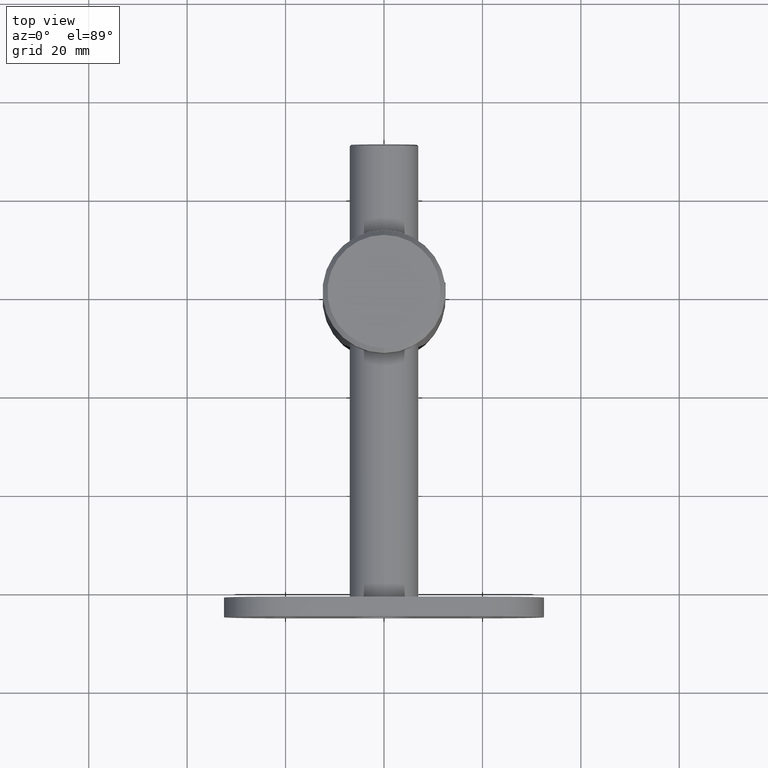
[diagram: clean part render]
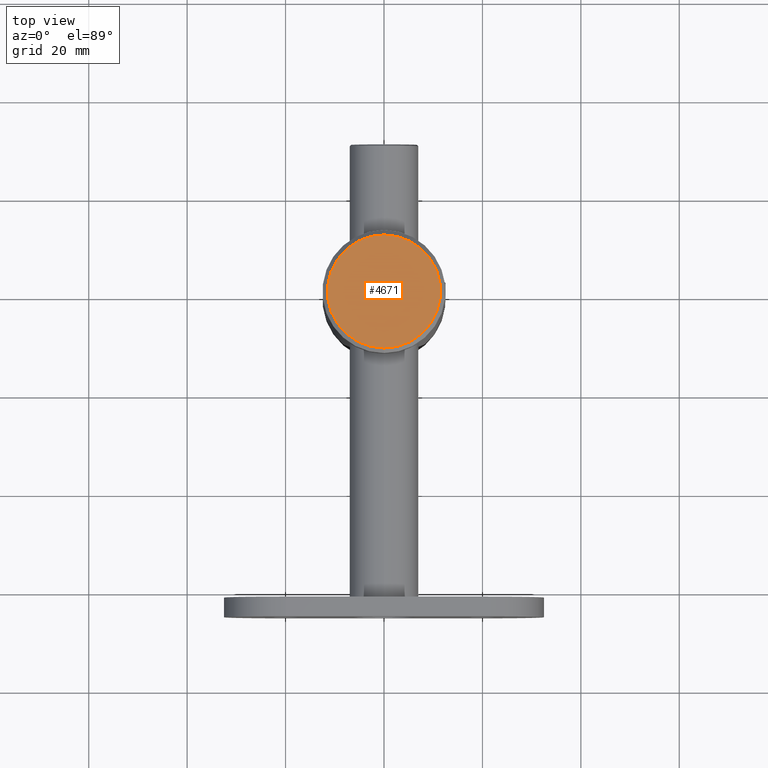
[diagram: same view with one face highlighted and labeled with its STEP entity id]
A machine part, top view. The second image highlights one B-rep face of the part: STEP entity #4671.
In plain terms, the highlighted planar face has unit normal (0, -0, 1).
Its self-contained STEP definition (entity closure, byte-faithful):
#814 = CIRCLE ( 'NONE', #12777, 11.50000000000000888 ) ;
#2507 = ORIENTED_EDGE ( 'NONE', *, *, #19660, .T. ) ;
#3276 = CARTESIAN_POINT ( 'NONE',  ( 1.469576158976824736E-15, -11.50000000000001599, 88.00000000000000000 ) ) ;
#3438 = ORIENTED_EDGE ( 'NONE', *, *, #7160, .T. ) ;
#4671 = ADVANCED_FACE ( 'NONE', ( #12754 ), #18930, .T. ) ;
#5395 = DIRECTION ( 'NONE',  ( 0.000000000000000000, -1.098045870766271941E-16, 1.000000000000000000 ) ) ;
#7128 = EDGE_LOOP ( 'NONE', ( #3438, #2507 ) ) ;
#7160 = EDGE_CURVE ( 'NONE', #18820, #13833, #814, .T. ) ;
#7470 = CIRCLE ( 'NONE', #16866, 11.50000000000000888 ) ;
#9997 = CARTESIAN_POINT ( 'NONE',  ( 0.000000000000000000, 11.50000000000000178, 88.00000000000000000 ) ) ;
#10137 = CARTESIAN_POINT ( 'NONE',  ( 0.000000000000000000, -6.938893903907228378E-15, 88.00000000000000000 ) ) ;
#10919 = DIRECTION ( 'NONE',  ( 0.000000000000000000, -1.000000000000000000, 0.000000000000000000 ) ) ;
#11211 = AXIS2_PLACEMENT_3D ( 'NONE', #10137, #5395, #13168 ) ;
#12465 = CARTESIAN_POINT ( 'NONE',  ( 0.000000000000000000, -6.938893903907228378E-15, 88.00000000000000000 ) ) ;
#12754 = FACE_OUTER_BOUND ( 'NONE', #7128, .T. ) ;
#12777 = AXIS2_PLACEMENT_3D ( 'NONE', #12465, #15543, #10919 ) ;
#13168 = DIRECTION ( 'NONE',  ( 0.000000000000000000, -1.000000000000000000, -1.098045870766271941E-16 ) ) ;
#13833 = VERTEX_POINT ( 'NONE', #3276 ) ;
#15349 = DIRECTION ( 'NONE',  ( 0.000000000000000000, -1.000000000000000000, 0.000000000000000000 ) ) ;
#15415 = DIRECTION ( 'NONE',  ( 0.000000000000000000, -1.098045870766271941E-16, 1.000000000000000000 ) ) ;
#15543 = DIRECTION ( 'NONE',  ( 0.000000000000000000, -1.098045870766271941E-16, 1.000000000000000000 ) ) ;
#16866 = AXIS2_PLACEMENT_3D ( 'NONE', #18463, #15415, #15349 ) ;
#18463 = CARTESIAN_POINT ( 'NONE',  ( 0.000000000000000000, -6.938893903907228378E-15, 88.00000000000000000 ) ) ;
#18820 = VERTEX_POINT ( 'NONE', #9997 ) ;
#18930 = PLANE ( 'NONE',  #11211 ) ;
#19660 = EDGE_CURVE ( 'NONE', #13833, #18820, #7470, .T. ) ;